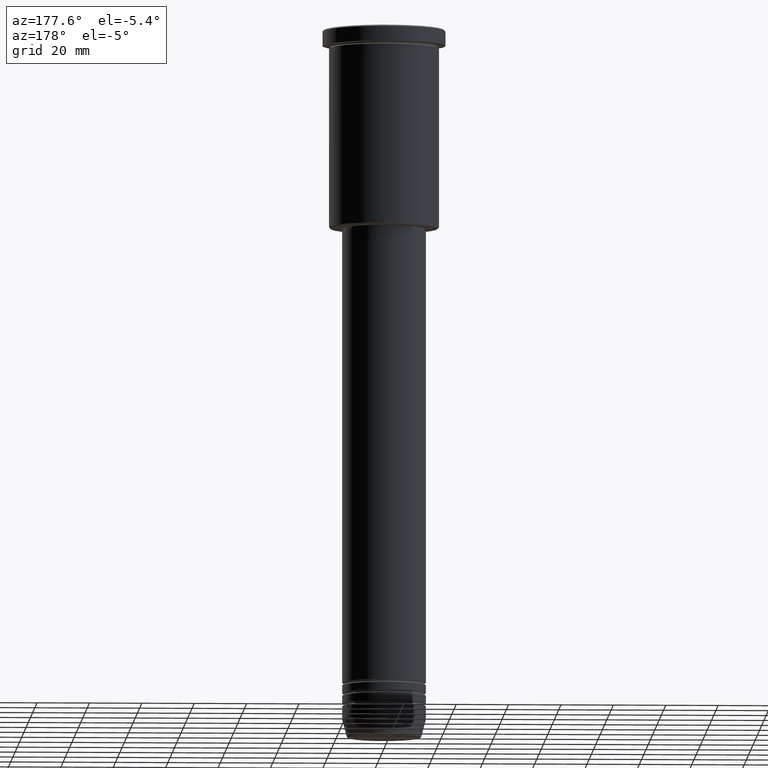
[diagram: clean part render]
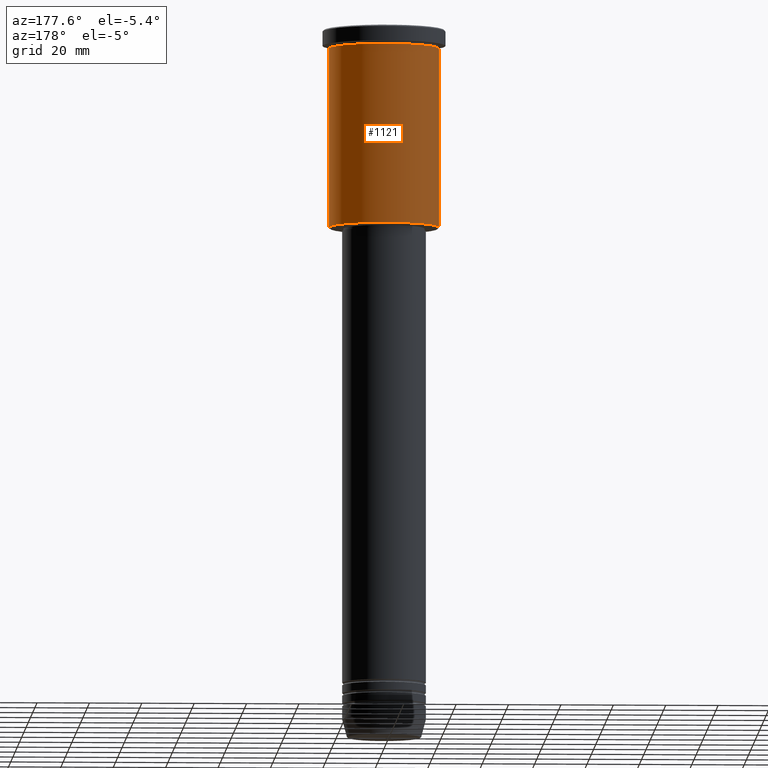
[diagram: same view with one face highlighted and labeled with its STEP entity id]
A machine part, auxiliary view. The second image highlights one B-rep face of the part: STEP entity #1121.
In plain terms, the highlighted cylindrical surface (partial cylindrical patch) has radius 21 mm, axis along (-0, -0, 1).
Its self-contained STEP definition (entity closure, byte-faithful):
#12 = VERTEX_POINT ( 'NONE', #407 ) ;
#84 = CARTESIAN_POINT ( 'NONE',  ( 0.000000000000000000, 0.000000000000000000, -6.999999999999993783 ) ) ;
#113 = CYLINDRICAL_SURFACE ( 'NONE', #918, 21.00000000000000000 ) ;
#177 = DIRECTION ( 'NONE',  ( -0.000000000000000000, -0.000000000000000000, 1.000000000000000000 ) ) ;
#193 = DIRECTION ( 'NONE',  ( 1.000000000000000000, 0.000000000000000000, 0.000000000000000000 ) ) ;
#252 = VERTEX_POINT ( 'NONE', #1021 ) ;
#270 = DIRECTION ( 'NONE',  ( 1.000000000000000000, 0.000000000000000000, 0.000000000000000000 ) ) ;
#311 = ORIENTED_EDGE ( 'NONE', *, *, #547, .F. ) ;
#317 = CARTESIAN_POINT ( 'NONE',  ( 21.00000000000000000, 0.000000000000000000, 0.000000000000000000 ) ) ;
#366 = DIRECTION ( 'NONE',  ( -0.000000000000000000, -0.000000000000000000, 1.000000000000000000 ) ) ;
#407 = CARTESIAN_POINT ( 'NONE',  ( -21.00000000000000000, 2.571758278209441661E-15, -75.49999999999998579 ) ) ;
#454 = CIRCLE ( 'NONE', #1117, 21.00000000000000000 ) ;
#460 = DIRECTION ( 'NONE',  ( -0.000000000000000000, -0.000000000000000000, 1.000000000000000000 ) ) ;
#547 = EDGE_CURVE ( 'NONE', #252, #583, #738, .T. ) ;
#579 = EDGE_CURVE ( 'NONE', #1147, #12, #454, .T. ) ;
#583 = VERTEX_POINT ( 'NONE', #889 ) ;
#594 = VECTOR ( 'NONE', #1126, 1000.000000000000000 ) ;
#662 = CARTESIAN_POINT ( 'NONE',  ( -21.00000000000000000, 2.571758278209441661E-15, 0.000000000000000000 ) ) ;
#702 = LINE ( 'NONE', #317, #594 ) ;
#718 = EDGE_CURVE ( 'NONE', #12, #583, #849, .T. ) ;
#723 = CARTESIAN_POINT ( 'NONE',  ( 0.000000000000000000, 0.000000000000000000, -75.49999999999998579 ) ) ;
#738 = CIRCLE ( 'NONE', #1065, 21.00000000000000000 ) ;
#742 = DIRECTION ( 'NONE',  ( -0.000000000000000000, -0.000000000000000000, 1.000000000000000000 ) ) ;
#837 = CARTESIAN_POINT ( 'NONE',  ( 21.00000000000000000, 0.000000000000000000, -75.49999999999998579 ) ) ;
#842 = EDGE_CURVE ( 'NONE', #1147, #252, #702, .T. ) ;
#846 = ORIENTED_EDGE ( 'NONE', *, *, #718, .T. ) ;
#849 = LINE ( 'NONE', #662, #951 ) ;
#852 = ORIENTED_EDGE ( 'NONE', *, *, #579, .T. ) ;
#889 = CARTESIAN_POINT ( 'NONE',  ( -21.00000000000000000, 2.571758278209441661E-15, -6.999999999999993783 ) ) ;
#918 = AXIS2_PLACEMENT_3D ( 'NONE', #1016, #460, #193 ) ;
#937 = FACE_OUTER_BOUND ( 'NONE', #1157, .T. ) ;
#951 = VECTOR ( 'NONE', #742, 1000.000000000000000 ) ;
#1016 = CARTESIAN_POINT ( 'NONE',  ( 0.000000000000000000, 0.000000000000000000, 0.000000000000000000 ) ) ;
#1021 = CARTESIAN_POINT ( 'NONE',  ( 21.00000000000000000, 0.000000000000000000, -6.999999999999993783 ) ) ;
#1039 = ORIENTED_EDGE ( 'NONE', *, *, #842, .F. ) ;
#1065 = AXIS2_PLACEMENT_3D ( 'NONE', #84, #366, #270 ) ;
#1078 = DIRECTION ( 'NONE',  ( -1.000000000000000000, 0.000000000000000000, 0.000000000000000000 ) ) ;
#1117 = AXIS2_PLACEMENT_3D ( 'NONE', #723, #177, #1078 ) ;
#1121 = ADVANCED_FACE ( 'NONE', ( #937 ), #113, .T. ) ;
#1126 = DIRECTION ( 'NONE',  ( -0.000000000000000000, -0.000000000000000000, 1.000000000000000000 ) ) ;
#1147 = VERTEX_POINT ( 'NONE', #837 ) ;
#1157 = EDGE_LOOP ( 'NONE', ( #852, #846, #311, #1039 ) ) ;